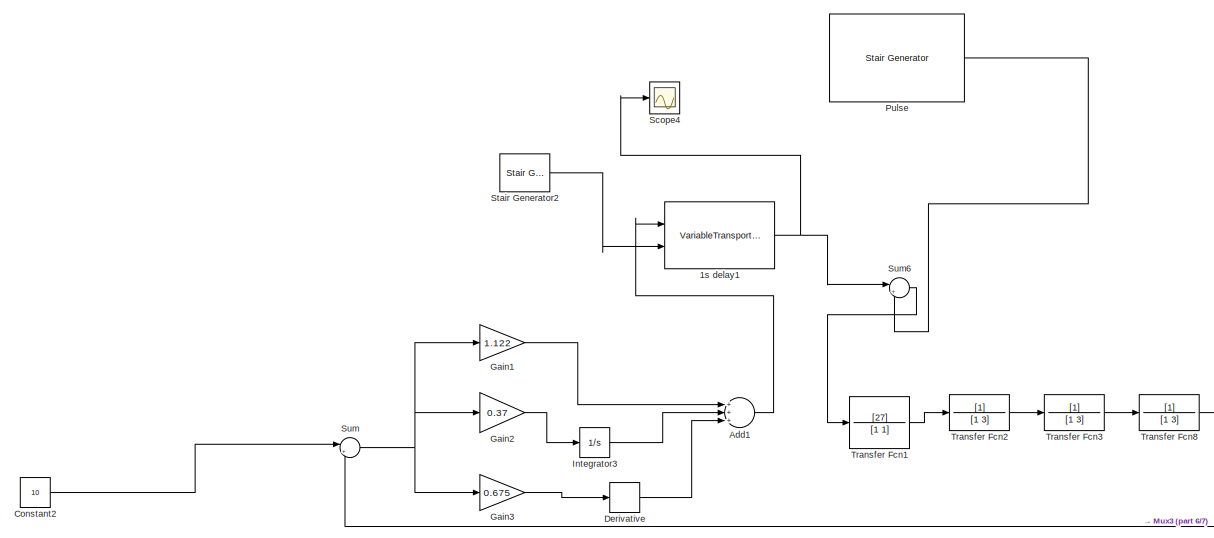
[diagram: root canvas - part 1/7, top left region]
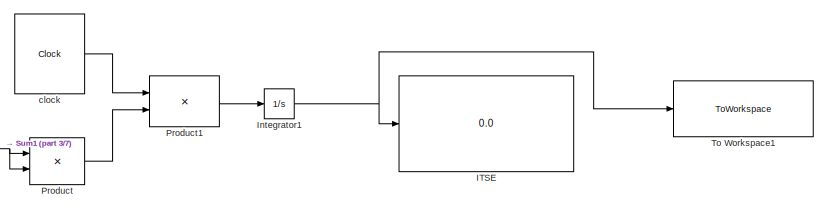
[diagram: root canvas - part 2/7, top left region]
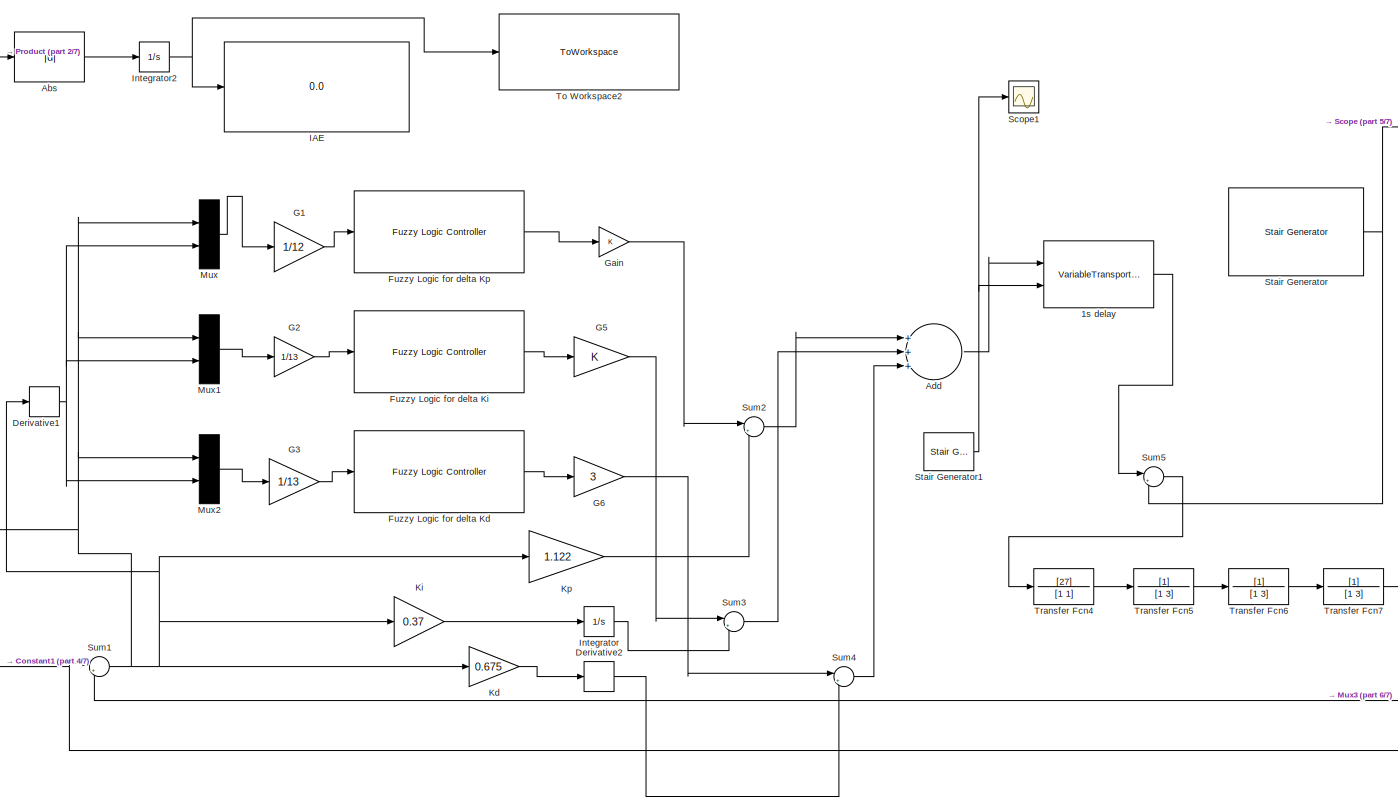
[diagram: root canvas - part 3/7, central region]
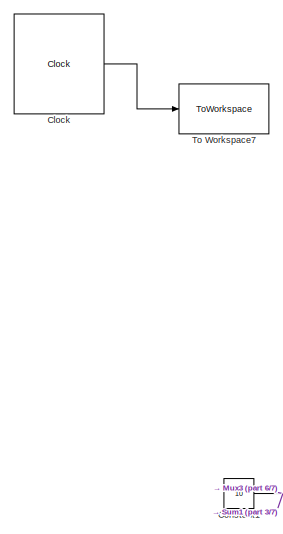
[diagram: root canvas - part 4/7, middle left region]
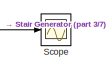
[diagram: root canvas - part 5/7, middle right region]
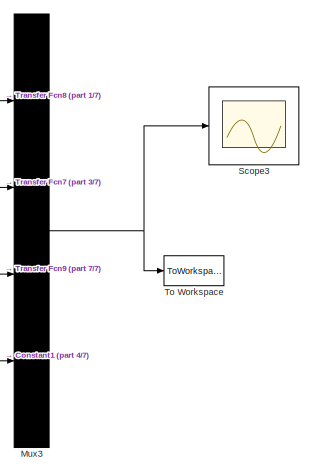
[diagram: root canvas - part 6/7, middle right region]
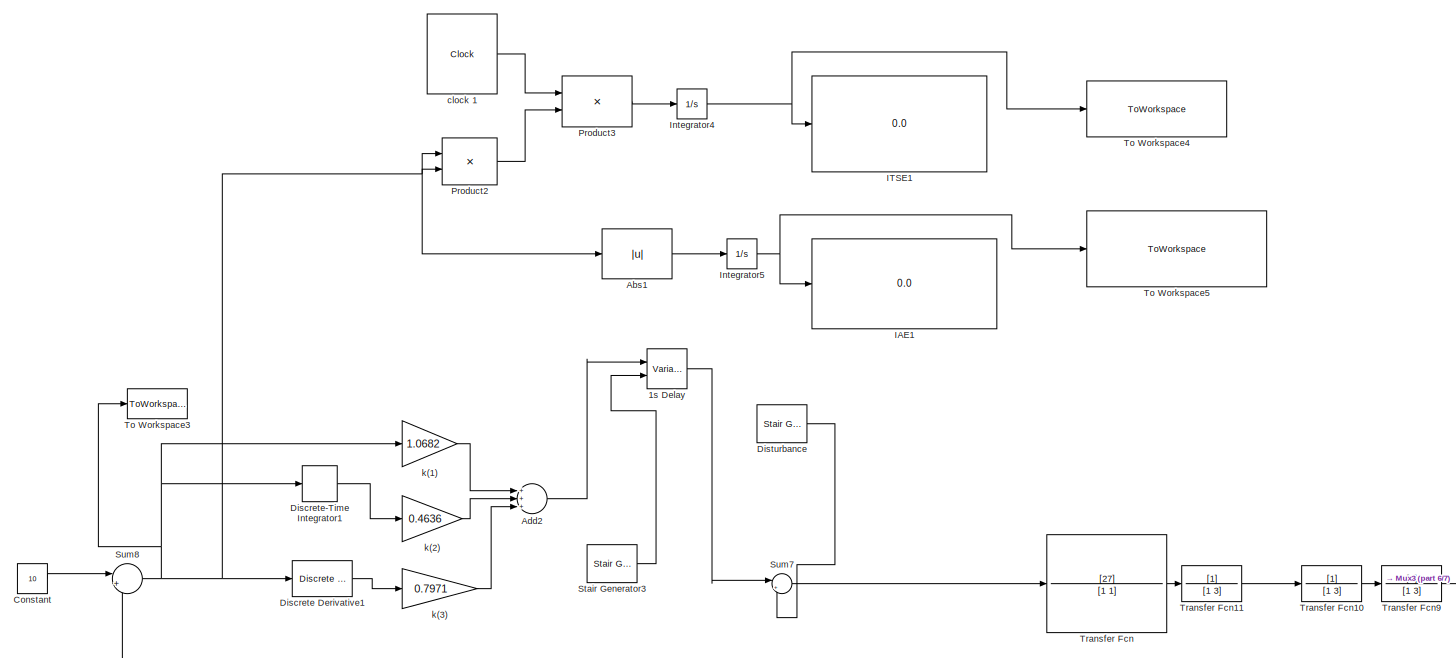
[diagram: root canvas - part 7/7, bottom center region]
MODEL slx_5aa821198ea1
KIND model
CONFIG AbsTol = auto
CONFIG EnableMultiTasking = off
CONFIG FixedStep = 0.01
CONFIG MaxStep = auto
CONFIG MinStep = auto
CONFIG RelTol = 1e-3
CONFIG SampleTimeConstraint = Unconstrained
CONFIG Solver = FixedStepAuto
CONFIG SolverName = FixedStepAuto
CONFIG StartTime = 0.0
CONFIG StopTime = 100
BLOCK [VariableTransportDelay] 1s Delay
  MaximumDelay = 10
  Ports = [2, 1]
  VariableDelayType = Variable transport delay
BLOCK [VariableTransportDelay] 1s delay
  MaximumDelay = 10
  Ports = [2, 1]
  VariableDelayType = Variable transport delay
BLOCK [VariableTransportDelay] 1s delay1
  MaximumDelay = 10
  Ports = [2, 1]
  VariableDelayType = Variable transport delay
BLOCK [Abs] Abs
  SaturateOnIntegerOverflow = off
BLOCK [Abs] Abs1
  SaturateOnIntegerOverflow = off
BLOCK [Sum] Add
  InputSameDT = off
  Inputs = +++
  OutDataTypeStr = Inherit: Inherit via internal rule
  Ports = [3, 1]
  SaturateOnIntegerOverflow = off
BLOCK [Sum] Add1
  InputSameDT = off
  Inputs = +++
  OutDataTypeStr = Inherit: Inherit via internal rule
  Ports = [3, 1]
  SaturateOnIntegerOverflow = off
BLOCK [Sum] Add2
  InputSameDT = off
  Inputs = +++
  OutDataTypeStr = Inherit: Inherit via internal rule
  Ports = [3, 1]
  SaturateOnIntegerOverflow = off
BLOCK [Clock] Clock
BLOCK [Constant] Constant
  Value = 10
BLOCK [Constant] Constant1
  Value = 10
BLOCK [Constant] Constant2
  Value = 10
BLOCK [Derivative] Derivative
BLOCK [Derivative] Derivative1
BLOCK [Derivative] Derivative2
BLOCK [Reference] Discrete Derivative1  REF=simulink/Discrete/Discrete Derivative
  Ports = [1, 1]
  SourceBlock = simulink/Discrete/Discrete Derivative
  SourceProductBaseCode = SL
  SourceProductName = Simulink
  SourceType = Discrete Derivative
BLOCK [DiscreteIntegrator] Discrete-Time Integrator1
  ICPrevOutput = DiscIntNeverNeededParam
  ICPrevScaledInput = DiscIntNeverNeededParam
  InitialConditionSetting = Auto
  Ports = [1, 1]
  SampleTime = -1
BLOCK [Reference] Disturbance   REF=powerlib_meascontrol/Pulse & Signal
Generators/Stair
Generator
  Ports = [0, 1]
  SourceBlock = powerlib_meascontrol/Pulse & Signal\nGenerators/Stair\nGenerator
  SourceProductBaseCode = PS
  SourceProductName = Simscape Electrical
  SourceType = Stair Generator
BLOCK [Reference] Fuzzy Logic for delta Kd  REF=fuzblock/Fuzzy Logic   (lib defined in mdl_858b3b3e7478)
Controller
  Ports = [1, 1]
  SourceBlock = fuzblock/Fuzzy Logic \nController
  SourceProductBaseCode = FL
  SourceProductName = Fuzzy Logic Toolbox
  SourceType = Fuzzy Inference System
BLOCK [Reference] Fuzzy Logic for delta Ki   REF=fuzblock/Fuzzy Logic   (lib defined in mdl_858b3b3e7478)
Controller
  Ports = [1, 1]
  SourceBlock = fuzblock/Fuzzy Logic \nController
  SourceProductBaseCode = FL
  SourceProductName = Fuzzy Logic Toolbox
  SourceType = Fuzzy Inference System
BLOCK [Reference] Fuzzy Logic for delta Kp   REF=fuzblock/Fuzzy Logic   (lib defined in mdl_858b3b3e7478)
Controller
  Ports = [1, 1]
  SourceBlock = fuzblock/Fuzzy Logic \nController
  SourceProductBaseCode = FL
  SourceProductName = Fuzzy Logic Toolbox
  SourceType = Fuzzy Inference System
BLOCK [Gain] G1
  Gain = 1/12
  OutDataTypeStr = Inherit: Inherit via internal rule
  ParamDataTypeStr = Inherit: Inherit via internal rule
  SaturateOnIntegerOverflow = off
BLOCK [Gain] G2
  Gain = 1/13
  OutDataTypeStr = Inherit: Inherit via internal rule
  ParamDataTypeStr = Inherit: Inherit via internal rule
  SaturateOnIntegerOverflow = off
BLOCK [Gain] G3
  Gain = 1/13
  OutDataTypeStr = Inherit: Inherit via internal rule
  ParamDataTypeStr = Inherit: Inherit via internal rule
  SaturateOnIntegerOverflow = off
BLOCK [Gain] G5
  OutDataTypeStr = Inherit: Inherit via internal rule
  ParamDataTypeStr = Inherit: Inherit via internal rule
  SaturateOnIntegerOverflow = off
BLOCK [Gain] G6 
  Gain = 3
  OutDataTypeStr = Inherit: Inherit via internal rule
  ParamDataTypeStr = Inherit: Inherit via internal rule
  SaturateOnIntegerOverflow = off
BLOCK [Gain] Gain
  OutDataTypeStr = Inherit: Inherit via internal rule
  ParamDataTypeStr = Inherit: Inherit via internal rule
  SaturateOnIntegerOverflow = off
BLOCK [Gain] Gain1
  Gain = 1.122
  OutDataTypeStr = Inherit: Inherit via internal rule
  ParamDataTypeStr = Inherit: Inherit via internal rule
  SaturateOnIntegerOverflow = off
BLOCK [Gain] Gain2
  Gain = 0.37
  OutDataTypeStr = Inherit: Inherit via internal rule
  ParamDataTypeStr = Inherit: Inherit via internal rule
  SaturateOnIntegerOverflow = off
BLOCK [Gain] Gain3
  Gain = 0.675
  OutDataTypeStr = Inherit: Inherit via internal rule
  ParamDataTypeStr = Inherit: Inherit via internal rule
  SaturateOnIntegerOverflow = off
BLOCK [Display] IAE
  Decimation = 1
  Ports = [1]
BLOCK [Display] IAE1
  Decimation = 1
  Ports = [1]
BLOCK [Display] ITSE
  Decimation = 1
  Ports = [1]
BLOCK [Display] ITSE1
  Decimation = 1
  Ports = [1]
BLOCK [Integrator] Integrator
  Ports = [1, 1]
BLOCK [Integrator] Integrator1
  Ports = [1, 1]
BLOCK [Integrator] Integrator2
  Ports = [1, 1]
BLOCK [Integrator] Integrator3
  Ports = [1, 1]
BLOCK [Integrator] Integrator4
  Ports = [1, 1]
BLOCK [Integrator] Integrator5
  Ports = [1, 1]
BLOCK [Gain] Kd
  Gain = 0.675
  OutDataTypeStr = Inherit: Inherit via internal rule
  ParamDataTypeStr = Inherit: Inherit via internal rule
  SaturateOnIntegerOverflow = off
BLOCK [Gain] Ki
  Gain = 0.37
  OutDataTypeStr = Inherit: Inherit via internal rule
  ParamDataTypeStr = Inherit: Inherit via internal rule
  SaturateOnIntegerOverflow = off
BLOCK [Gain] Kp 
  Gain = 1.122
  OutDataTypeStr = Inherit: Inherit via internal rule
  ParamDataTypeStr = Inherit: Inherit via internal rule
  SaturateOnIntegerOverflow = off
BLOCK [Mux] Mux
  DisplayOption = bar
  Inputs = 2
  Ports = [2, 1]
BLOCK [Mux] Mux1
  DisplayOption = bar
  Inputs = 2
  Ports = [2, 1]
BLOCK [Mux] Mux2
  DisplayOption = bar
  Inputs = 2
  Ports = [2, 1]
BLOCK [Mux] Mux3
  DisplayOption = bar
  Ports = [4, 1]
BLOCK [Product] Product
  InputSameDT = off
  OutDataTypeStr = Inherit: Inherit via internal rule
  Ports = [2, 1]
  RndMeth = Floor
  SaturateOnIntegerOverflow = off
BLOCK [Product] Product1
  InputSameDT = off
  OutDataTypeStr = Inherit: Inherit via internal rule
  Ports = [2, 1]
  RndMeth = Floor
  SaturateOnIntegerOverflow = off
BLOCK [Product] Product2
  InputSameDT = off
  OutDataTypeStr = Inherit: Inherit via internal rule
  Ports = [2, 1]
  RndMeth = Floor
  SaturateOnIntegerOverflow = off
BLOCK [Product] Product3
  InputSameDT = off
  OutDataTypeStr = Inherit: Inherit via internal rule
  Ports = [2, 1]
  RndMeth = Floor
  SaturateOnIntegerOverflow = off
BLOCK [Reference] Pulse  REF=powerlib_meascontrol/Pulse & Signal
Generators/Stair
Generator
  Ports = [0, 1]
  SourceBlock = powerlib_meascontrol/Pulse & Signal\nGenerators/Stair\nGenerator
  SourceProductBaseCode = PS
  SourceProductName = Simscape Electrical
  SourceType = Stair Generator
BLOCK [Scope] Scope
  Floating = off
  NumInputPorts = 1
  Ports = [1]
  ScopeSpecificationString = Simulink.scopes.TimeScopeBlockCfg('CurrentConfiguration', extmgr.ConfigurationSet(extmgr.Configuration('Core','General UI',true),extmgr.Configuration('Core','Source UI',true),extmgr.Configuration('Sources','WiredSimulink',true,'DataLoggingVariableName','ScopeData1'),extmgr.Configuration('Visuals','Time Domain',true,'SerializedDisplays',{struct('MinYLimReal','-0.625','MaxYLimReal','5.625','YLabelRe...<+1362ch>
BLOCK [Scope] Scope1
  Floating = off
  NumInputPorts = 1
  Ports = [1]
  ScopeSpecificationString = Simulink.scopes.TimeScopeBlockCfg('CurrentConfiguration', extmgr.ConfigurationSet(extmgr.Configuration('Core','General UI',true),extmgr.Configuration('Core','Source UI',true),extmgr.Configuration('Sources','WiredSimulink',true,'DataLoggingVariableName','ScopeData1'),extmgr.Configuration('Visuals','Time Domain',true,'SerializedDisplays',{struct('MinYLimReal','0.875','MaxYLimReal','2.125','YLabelRea...<+1357ch>
BLOCK [Scope] Scope3
  Floating = off
  NumInputPorts = 1
  Ports = [1]
  ScopeSpecificationString = Simulink.scopes.TimeScopeBlockCfg('CurrentConfiguration', extmgr.ConfigurationSet(extmgr.Configuration('Core','General UI',true),extmgr.Configuration('Core','Source UI',true),extmgr.Configuration('Sources','WiredSimulink',true),extmgr.Configuration('Visuals','Time Domain',true,'SerializedDisplays',{struct('MinYLimReal','-2.64324','MaxYLimReal','21.75174','YLabelReal','','MinYLimMag','0.00000','Max...<+1401ch>
BLOCK [Scope] Scope4
  Floating = off
  NumInputPorts = 1
  Ports = [1]
  ScopeSpecificationString = Simulink.scopes.TimeScopeBlockCfg('CurrentConfiguration', extmgr.ConfigurationSet(extmgr.Configuration('Core','General UI',true),extmgr.Configuration('Core','Source UI',true),extmgr.Configuration('Sources','WiredSimulink',true,'DataLoggingVariableName','ScopeData2'),extmgr.Configuration('Visuals','Time Domain',true),extmgr.Configuration('Tools','Plot Navigation',true),extmgr.Configuration('Tools',...<+40ch>
BLOCK [Reference] Stair Generator  REF=powerlib_meascontrol/Pulse & Signal
Generators/Stair
Generator
  Ports = [0, 1]
  SourceBlock = powerlib_meascontrol/Pulse & Signal\nGenerators/Stair\nGenerator
  SourceProductBaseCode = PS
  SourceProductName = Simscape Electrical
  SourceType = Stair Generator
BLOCK [Reference] Stair Generator1  REF=powerlib_meascontrol/Pulse & Signal
Generators/Stair
Generator
  Ports = [0, 1]
  SourceBlock = powerlib_meascontrol/Pulse & Signal\nGenerators/Stair\nGenerator
  SourceProductBaseCode = PS
  SourceProductName = Simscape Electrical
  SourceType = Stair Generator
BLOCK [Reference] Stair Generator2  REF=powerlib_meascontrol/Pulse & Signal
Generators/Stair
Generator
  Ports = [0, 1]
  SourceBlock = powerlib_meascontrol/Pulse & Signal\nGenerators/Stair\nGenerator
  SourceProductBaseCode = PS
  SourceProductName = Simscape Electrical
  SourceType = Stair Generator
BLOCK [Reference] Stair Generator3  REF=powerlib_meascontrol/Pulse & Signal
Generators/Stair
Generator
  Ports = [0, 1]
  SourceBlock = powerlib_meascontrol/Pulse & Signal\nGenerators/Stair\nGenerator
  SourceProductBaseCode = PS
  SourceProductName = Simscape Electrical
  SourceType = Stair Generator
BLOCK [Sum] Sum
  IconShape = round
  InputSameDT = off
  Inputs = |+-
  OutDataTypeStr = Inherit: Inherit via internal rule
  Ports = [2, 1]
  SaturateOnIntegerOverflow = off
BLOCK [Sum] Sum1
  IconShape = round
  InputSameDT = off
  Inputs = |+-
  OutDataTypeStr = Inherit: Inherit via internal rule
  Ports = [2, 1]
  SaturateOnIntegerOverflow = off
BLOCK [Sum] Sum2
  IconShape = round
  InputSameDT = off
  Inputs = |++
  OutDataTypeStr = Inherit: Inherit via internal rule
  Ports = [2, 1]
  SaturateOnIntegerOverflow = off
BLOCK [Sum] Sum3
  IconShape = round
  InputSameDT = off
  Inputs = |++
  OutDataTypeStr = Inherit: Inherit via internal rule
  Ports = [2, 1]
  SaturateOnIntegerOverflow = off
BLOCK [Sum] Sum4
  IconShape = round
  InputSameDT = off
  Inputs = |++
  OutDataTypeStr = Inherit: Inherit via internal rule
  Ports = [2, 1]
  SaturateOnIntegerOverflow = off
BLOCK [Sum] Sum5
  IconShape = round
  InputSameDT = off
  Inputs = |++
  OutDataTypeStr = Inherit: Inherit via internal rule
  Ports = [2, 1]
  SaturateOnIntegerOverflow = off
BLOCK [Sum] Sum6
  IconShape = round
  InputSameDT = off
  Inputs = |++
  OutDataTypeStr = Inherit: Inherit via internal rule
  Ports = [2, 1]
  SaturateOnIntegerOverflow = off
BLOCK [Sum] Sum7
  IconShape = round
  InputSameDT = off
  Inputs = |++
  OutDataTypeStr = Inherit: Inherit via internal rule
  Ports = [2, 1]
  SaturateOnIntegerOverflow = off
BLOCK [Sum] Sum8
  IconShape = round
  InputSameDT = off
  Inputs = |+-
  OutDataTypeStr = Inherit: Inherit via internal rule
  Ports = [2, 1]
  SaturateOnIntegerOverflow = off
BLOCK [ToWorkspace] To Workspace
  FixptAsFi = on
  MaxDataPoints = inf
  Ports = [1]
  SampleTime = -1
  SaveFormat = Timeseries
  VariableName = out
BLOCK [ToWorkspace] To Workspace1
  FixptAsFi = on
  MaxDataPoints = inf
  Ports = [1]
  SampleTime = -1
  VariableName = ITSE
BLOCK [ToWorkspace] To Workspace2
  FixptAsFi = on
  MaxDataPoints = inf
  Ports = [1]
  SampleTime = -1
  VariableName = IAE
BLOCK [ToWorkspace] To Workspace3
  FixptAsFi = on
  MaxDataPoints = inf
  Ports = [1]
  SampleTime = -1
  VariableName = e
BLOCK [ToWorkspace] To Workspace4
  FixptAsFi = on
  MaxDataPoints = inf
  Ports = [1]
  SampleTime = -1
  VariableName = ITSE1
BLOCK [ToWorkspace] To Workspace5
  FixptAsFi = on
  MaxDataPoints = inf
  Ports = [1]
  SampleTime = -1
  VariableName = IAE1
BLOCK [ToWorkspace] To Workspace7
  FixptAsFi = on
  MaxDataPoints = inf
  Ports = [1]
  SampleTime = -1
  SaveFormat = Timeseries
  VariableName = t
BLOCK [TransferFcn] Transfer Fcn
  Denominator = [1 1]
  Numerator = [27]
BLOCK [TransferFcn] Transfer Fcn1
  Denominator = [1 1]
  Numerator = [27]
BLOCK [TransferFcn] Transfer Fcn10
  Denominator = [1 3]
BLOCK [TransferFcn] Transfer Fcn11
  Denominator = [1 3]
BLOCK [TransferFcn] Transfer Fcn2
  Denominator = [1 3]
BLOCK [TransferFcn] Transfer Fcn3
  Denominator = [1 3]
BLOCK [TransferFcn] Transfer Fcn4
  Denominator = [1 1]
  Numerator = [27]
BLOCK [TransferFcn] Transfer Fcn5
  Denominator = [1 3]
BLOCK [TransferFcn] Transfer Fcn6
  Denominator = [1 3]
BLOCK [TransferFcn] Transfer Fcn7
  Denominator = [1 3]
BLOCK [TransferFcn] Transfer Fcn8
  Denominator = [1 3]
BLOCK [TransferFcn] Transfer Fcn9
  Denominator = [1 3]
BLOCK [Clock] clock 
BLOCK [Clock] clock 1
BLOCK [Gain] k(1)
  Gain = 1.0682
  OutDataTypeStr = Inherit: Inherit via internal rule
  ParamDataTypeStr = Inherit: Inherit via internal rule
  SaturateOnIntegerOverflow = off
BLOCK [Gain] k(2)
  Gain = 0.4636
  OutDataTypeStr = Inherit: Inherit via internal rule
  ParamDataTypeStr = Inherit: Inherit via internal rule
  SaturateOnIntegerOverflow = off
BLOCK [Gain] k(3)
  Gain = 0.7971
  OutDataTypeStr = Inherit: Inherit via internal rule
  ParamDataTypeStr = Inherit: Inherit via internal rule
  SaturateOnIntegerOverflow = off
LINE 1s Delay:1 -> Sum7:1
NET 1s delay1:1 -> Scope4:1, Sum6:1
LINE 1s delay:1 -> Sum5:1
LINE Abs1:1 -> Integrator5:1
LINE Abs:1 -> Integrator2:1
LINE Add1:1 -> 1s delay1:1
LINE Add2:1 -> 1s Delay:1
LINE Add:1 -> 1s delay:1
LINE Clock:1 -> To Workspace7:1
NET Constant1:1 -> Mux3:4, Sum1:1
LINE Constant2:1 -> Sum:1
LINE Constant:1 -> Sum8:1
NET Derivative1:1 -> Mux1:2, Mux2:2, Mux:2
LINE Derivative2:1 -> Sum4:2
LINE Derivative:1 -> Add1:3
LINE Discrete Derivative1:1 -> k(3):1
LINE Discrete-Time Integrator1:1 -> k(2):1
LINE Disturbance :1 -> Sum7:2
LINE Fuzzy Logic for delta Kd:1 -> G6 :1
LINE Fuzzy Logic for delta Ki :1 -> G5:1
LINE Fuzzy Logic for delta Kp :1 -> Gain:1
LINE G1:1 -> Fuzzy Logic for delta Kp :1
LINE G2:1 -> Fuzzy Logic for delta Ki :1
LINE G3:1 -> Fuzzy Logic for delta Kd:1
LINE G5:1 -> Sum3:1
LINE G6 :1 -> Sum4:1
LINE Gain1:1 -> Add1:1
LINE Gain2:1 -> Integrator3:1
LINE Gain3:1 -> Derivative:1
LINE Gain:1 -> Sum2:1
NET Integrator1:1 -> ITSE:1, To Workspace1:1
NET Integrator2:1 -> IAE:1, To Workspace2:1
LINE Integrator3:1 -> Add1:2
NET Integrator4:1 -> ITSE1:1, To Workspace4:1
NET Integrator5:1 -> IAE1:1, To Workspace5:1
LINE Integrator:1 -> Sum3:2
LINE Kd:1 -> Derivative2:1
LINE Ki:1 -> Integrator:1
LINE Kp :1 -> Sum2:2
LINE Mux1:1 -> G2:1
LINE Mux2:1 -> G3:1
NET Mux3:1 -> Scope3:1, To Workspace:1
LINE Mux:1 -> G1:1
LINE Product1:1 -> Integrator1:1
LINE Product2:1 -> Product3:2
LINE Product3:1 -> Integrator4:1
LINE Product:1 -> Product1:2
LINE Pulse:1 -> Sum6:2
NET Stair Generator1:1 -> 1s delay:2, Scope1:1
LINE Stair Generator2:1 -> 1s delay1:2
LINE Stair Generator3:1 -> 1s Delay:2
NET Stair Generator:1 -> Scope:1, Sum5:2
NET Sum1:1 -> Abs:1, Derivative1:1, Kd:1, Ki:1, Kp :1, Mux1:1, Mux2:1, Mux:1, Product:1, Product:2
LINE Sum2:1 -> Add:1
LINE Sum3:1 -> Add:2
LINE Sum4:1 -> Add:3
LINE Sum5:1 -> Transfer Fcn4:1
LINE Sum6:1 -> Transfer Fcn1:1
LINE Sum7:1 -> Transfer Fcn:1
NET Sum8:1 -> Abs1:1, Discrete Derivative1:1, Discrete-Time Integrator1:1, Product2:1, Product2:2, To Workspace3:1, k(1):1
NET Sum:1 -> Gain1:1, Gain2:1, Gain3:1
LINE Transfer Fcn10:1 -> Transfer Fcn9:1
LINE Transfer Fcn11:1 -> Transfer Fcn10:1
LINE Transfer Fcn1:1 -> Transfer Fcn2:1
LINE Transfer Fcn2:1 -> Transfer Fcn3:1
LINE Transfer Fcn3:1 -> Transfer Fcn8:1
LINE Transfer Fcn4:1 -> Transfer Fcn5:1
LINE Transfer Fcn5:1 -> Transfer Fcn6:1
LINE Transfer Fcn6:1 -> Transfer Fcn7:1
NET Transfer Fcn7:1 -> Mux3:2, Sum1:2
NET Transfer Fcn8:1 -> Mux3:1, Sum:2
NET Transfer Fcn9:1 -> Mux3:3, Sum8:2
LINE Transfer Fcn:1 -> Transfer Fcn11:1
LINE clock 1:1 -> Product3:1
LINE clock :1 -> Product1:1
LINE k(1):1 -> Add2:1
LINE k(2):1 -> Add2:2
LINE k(3):1 -> Add2:3
note: NET lines group one-source signal fan-out (src -> all destinations, sorted); 1:1 wires keep LINE
